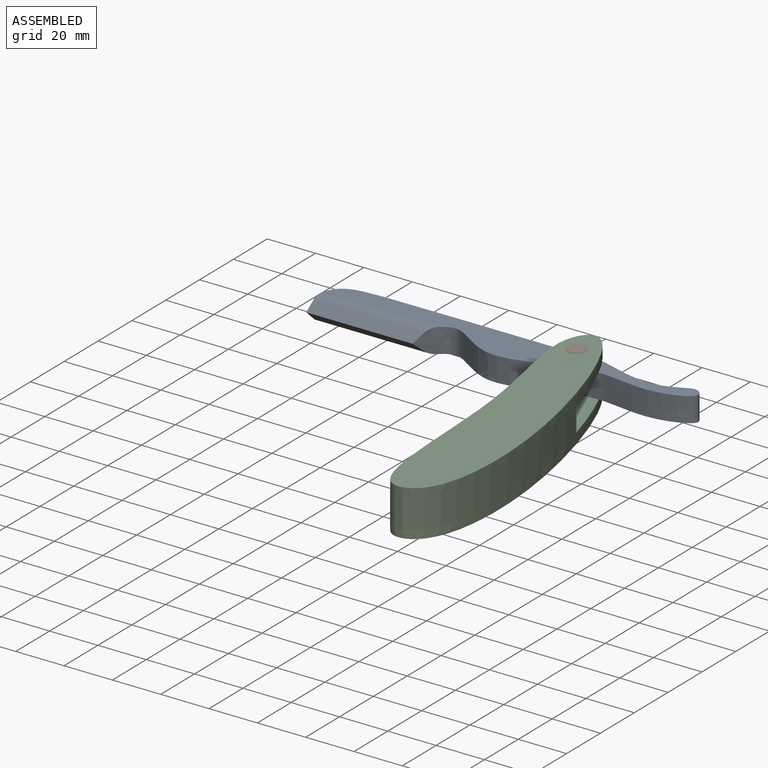
[diagram: assembled view]
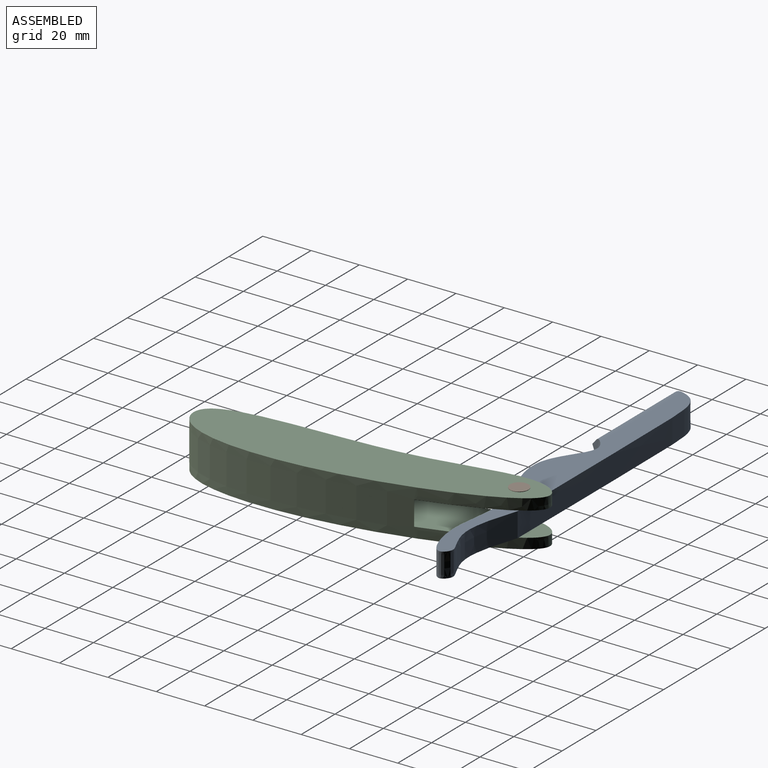
[diagram: assembled view, second angle]
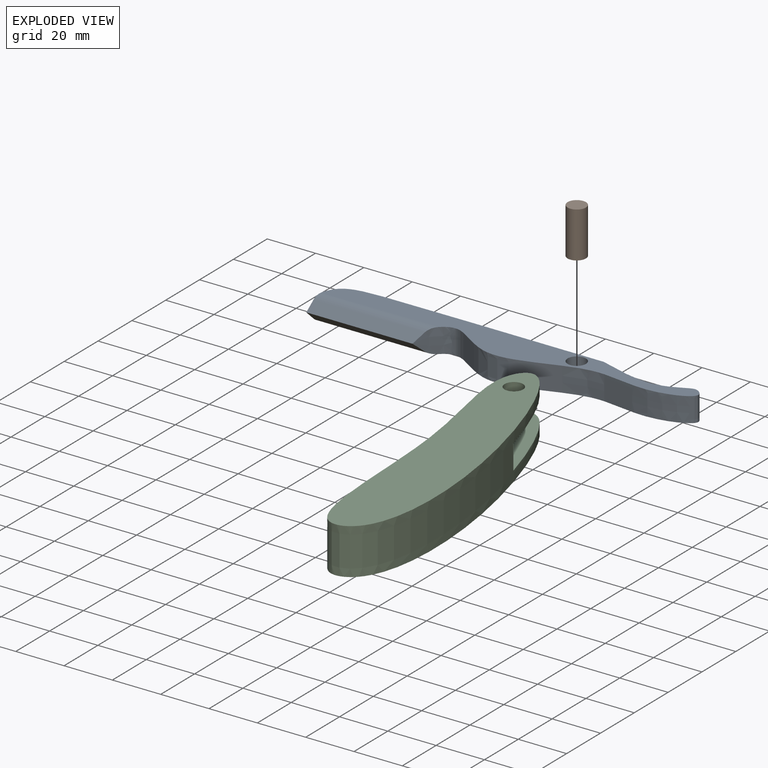
[diagram: exploded view]
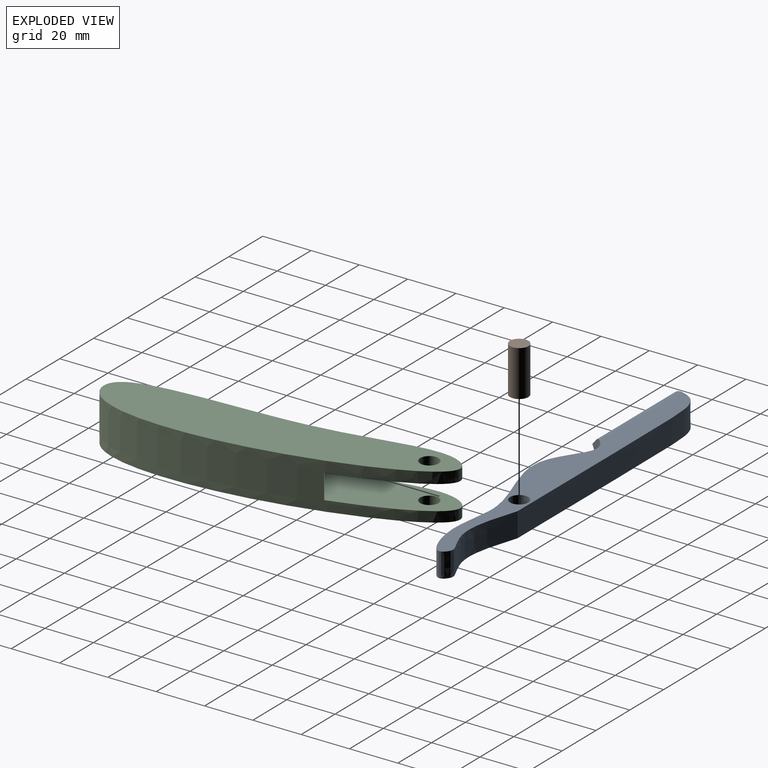
[diagram: exploded view, second angle]
ASSEMBLY  parts=3 mates=2
PART A: 11 faces, bbox 154.1x18.1x10.2 mm
  f0: extruded ~11.18x10.11mm, area 121.9mm2, adj f1,f5,f6,f7,f8,f9,f10
  f1: extruded ~97.98x16.71mm, area 1490.5mm2, adj f0,f2,f5,f6
  f2: extruded ~56.44x10.11mm, area 570.5mm2, adj f1,f3,f5,f6
  f3: extruded ~55.12x16.54mm, area 633.5mm2, adj f2,f5,f6,f7,f8,f9,f10
  f4: cylinder r=3.81mm len=10.11mm, axis (0,0,-1), area 242mm2, adj f5,f6
  f5: plane 153.34x18mm, normal (0,0,1), area 1371.8mm2, adj f0,f1,f2,f3,f4,f10
  f6: plane 153.34x18mm, normal (0,0,-1), area 1371.8mm2, adj f0,f1,f2,f3,f4,f9
  f7: plane 46.57x3.63mm, normal (0,-0.71,0.71), area 226.8mm2, adj f0,f3,f8,f10
  f8: plane 46.57x3.62mm, normal (0,-0.71,-0.71), area 226.8mm2, adj f0,f3,f7,f9
  f9: cylinder r=5.08mm len=49.16mm, axis (-1,0,0), area 187.6mm2, adj f0,f3,f6,f8
  f10: cylinder r=5.08mm len=49.16mm, axis (1,0,0), area 187.6mm2, adj f0,f3,f5,f7
PART B: 3 faces, bbox 7.6x7.6x19.1 mm
  f0: cylinder r=3.81mm len=19.05mm, axis (0,0,-1), area 456mm2, adj f1,f2
  f1: plane 7.62x7.62mm, normal (0,0,1), area 45.6mm2, adj f0
  f2: plane 7.62x7.62mm, normal (0,0,-1), area 45.6mm2, adj f0
PART C: 9 faces, bbox 41.7x143.1x19.1 mm
  f0: cylinder r=3.81mm len=7.62mm, axis (0,0,-1), area 101.9mm2, adj f4,f7
  f1: extruded ~136.94x36.66mm, area 3751.7mm2, adj f3,f4,f5,f6,f7,f8
  f2: cylinder r=3.81mm len=7.62mm, axis (0,0,-1), area 110.9mm2, adj f3,f5
  f3: plane 143.09x41.69mm, normal (0,0,1), area 3041.3mm2, adj f1,f2
  f4: plane 143.09x41.69mm, normal (0,0,-1), area 3041.3mm2, adj f0,f1
  f5: plane 138.51x31.64mm, normal (0,0,-1), area 2461.7mm2, adj f1,f2,f6,f8
  f6: plane 12.11x10.16mm, normal (0,1,0), area 123.1mm2, adj f1,f5,f7,f8
  f7: plane 138.51x31.64mm, normal (0,0,1), area 2461.7mm2, adj f0,f1,f6,f8
  f8: plane 92.74x10.16mm, normal (-1,0,0), area 942.2mm2, adj f1,f5,f6,f7
PLACE A t=(-11.94,45.08,-16.26)mm
PLACE B t=(29.24,51.96,-20.41)mm
PLACE C t=(-13.55,6.87,-20.57)mm
MATE revolute A.f4 <-> C.f0  axis (0,0,1) through (-13.55,56.75,-6.15)mm
MATE cylindrical B.f0 <-> C.f0  axis (0,0,-1) through (-13.55,56.75,-20.41)mm
